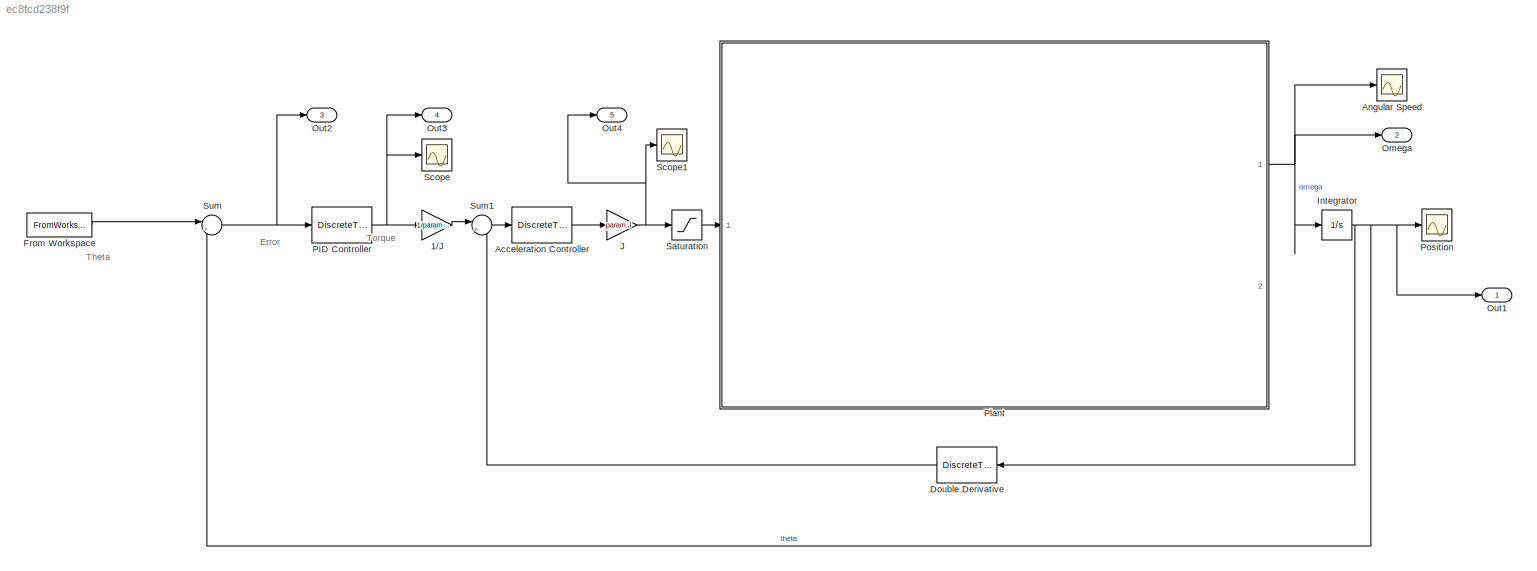
MODEL slx_ec8fcd238f9f
KIND model
CONFIG AbsTol = auto
CONFIG EnableMultiTasking = off
CONFIG FixedStep = auto
CONFIG MaxStep = auto
CONFIG MinStep = auto
CONFIG RelTol = 1e-3
CONFIG SampleTimeConstraint = Unconstrained
CONFIG SolverName = VariableStepAuto
CONFIG StartTime = 0.0
CONFIG StopTime = 10
BLOCK [Gain] 1//J
  Gain = 1/param.J
BLOCK [DiscreteTransferFcn] Acceleration Controller
  Denominator = a_ac
  InputPortMap = u0
  Numerator = b_ac
  Ports = [1, 1]
  SampleTime = T
BLOCK [Scope] Angular Speed
  Floating = off
  NumInputPorts = 1
  Ports = [1]
  ScopeSpecificationString = Simulink.scopes.TimeScopeBlockCfg('CurrentConfiguration', extmgr.ConfigurationSet(extmgr.Configuration('Core','General UI',true),extmgr.Configuration('Core','Source UI',true),extmgr.Configuration('Sources','WiredSimulink',true,'DataLoggingVariableName','ScopeData1'),extmgr.Configuration('Visuals','Time Domain',true,'SerializedDisplays',{struct('MinYLimReal','-16.66629','MaxYLimReal','85.93646','YL...<+1449ch>
BLOCK [DiscreteTransferFcn] Double Derivative
  Denominator = a_dd
  InputPortMap = u0
  Numerator = b_dd
  Ports = [1, 1]
  SampleTime = T
BLOCK [FromWorkspace] From Workspace
  VariableName = sim_source_on
BLOCK [Integrator] Integrator
  Ports = [1, 1]
BLOCK [Gain] J
  Gain = param.J
BLOCK [Outport] Omega
  Port = 2
  SignalName = omega
BLOCK [Outport] Out1
  SignalName = theta
BLOCK [Outport] Out2
  Port = 3
  SignalName = error
BLOCK [Outport] Out3
  Port = 4
  SignalName = PID Torque
BLOCK [Outport] Out4
  Port = 5
  SignalName = Accel Torque
BLOCK [DiscreteTransferFcn] PID Controller
  Denominator = a_pid
  InputPortMap = u0
  Numerator = b_pid
  Ports = [1, 1]
  SampleTime = T
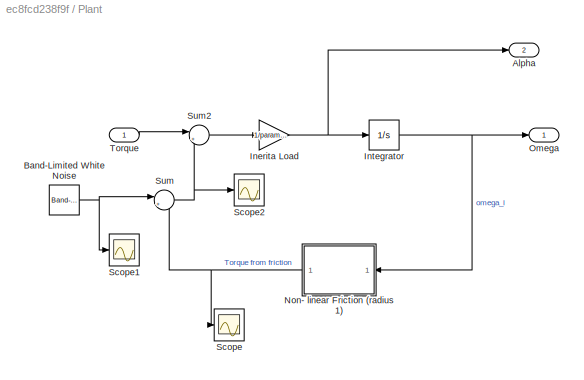
BLOCK [SubSystem] Plant
  Ports = [1, 2]
  RequestExecContextInheritance = off
BLOCK [Outport] Plant/Alpha
  Port = 2
BLOCK [Reference] Plant/Band-Limited White Noise  REF=simulink/Sources/Band-Limited
White Noise
  Ports = [0, 1]
  SourceBlock = simulink/Sources/Band-Limited\nWhite Noise
  SourceProductBaseCode = SL
  SourceType = Band-Limited White Noise.
BLOCK [Gain] Plant/Inerita Load
  Gain = 1/param.J
BLOCK [Integrator] Plant/Integrator
  Ports = [1, 1]
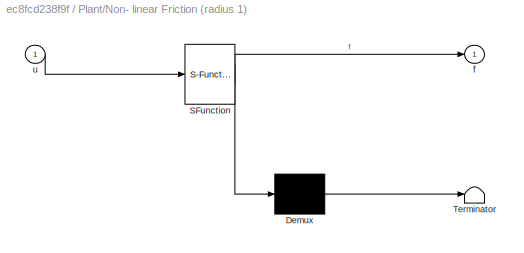
BLOCK [SubSystem] Plant/Non- linear Friction (radius 1)
  ErrorFcn = Stateflow.Translate.translate
  PermitHierarchicalResolution = ExplicitOnly
  Ports = [1, 1]
  RequestExecContextInheritance = off
  SFBlockType = MATLAB Function
  TreatAsAtomicUnit = on
BLOCK [Demux] Plant/Non- linear Friction (radius 1)/ Demux 
  Outputs = 1
  Ports = [1, 1]
BLOCK [S-Function] Plant/Non- linear Friction (radius 1)/ SFunction 
  EnableBusSupport = on
  FunctionName = sf_sfun
  Parameters = param
  PortCounts = [1 2]
  Ports = [1, 2]
  SFcnIsStateOwnerBlock = off
  SFunctionDeploymentMode = off
  Tag = Stateflow S-Function 2
BLOCK [Terminator] Plant/Non- linear Friction (radius 1)/ Terminator 
BLOCK [Outport] Plant/Non- linear Friction (radius 1)/f
BLOCK [Inport] Plant/Non- linear Friction (radius 1)/u
BLOCK [Outport] Plant/Omega
BLOCK [Scope] Plant/Scope
  Floating = off
  NumInputPorts = 1
  Ports = [1]
  ScopeSpecificationString = Simulink.scopes.TimeScopeBlockCfg('CurrentConfiguration', extmgr.ConfigurationSet(extmgr.Configuration('Core','General UI',true),extmgr.Configuration('Core','Source UI',true),extmgr.Configuration('Sources','WiredSimulink',true,'DataLoggingVariableName','ScopeData1'),extmgr.Configuration('Visuals','Time Domain',true,'SerializedDisplays',{struct('MinYLimReal','-0.15171','MaxYLimReal','0.15171','YLab...<+1379ch>
BLOCK [Scope] Plant/Scope1
  Floating = off
  NumInputPorts = 1
  Ports = [1]
  ScopeSpecificationString = Simulink.scopes.TimeScopeBlockCfg('CurrentConfiguration', extmgr.ConfigurationSet(extmgr.Configuration('Core','General UI',true),extmgr.Configuration('Core','Source UI',true),extmgr.Configuration('Sources','WiredSimulink',true,'DataLoggingVariableName','ScopeData1'),extmgr.Configuration('Visuals','Time Domain',true,'SerializedDisplays',{struct('MinYLimReal','-0.02423','MaxYLimReal','0.02143','YLab...<+1383ch>
BLOCK [Scope] Plant/Scope2
  Floating = off
  NumInputPorts = 1
  Ports = [1]
  ScopeSpecificationString = Simulink.scopes.TimeScopeBlockCfg('CurrentConfiguration', extmgr.ConfigurationSet(extmgr.Configuration('Core','General UI',true),extmgr.Configuration('Core','Source UI',true),extmgr.Configuration('Sources','WiredSimulink',true,'DataLoggingVariableName','ScopeData2'),extmgr.Configuration('Visuals','Time Domain',true,'SerializedDisplays',{struct('MinYLimReal','-0.02423','MaxYLimReal','0.02143','YLab...<+1362ch>
BLOCK [Sum] Plant/Sum
  Inputs = |++
  Ports = [2, 1]
BLOCK [Sum] Plant/Sum2
  Inputs = |+-
  Ports = [2, 1]
BLOCK [Inport] Plant/Torque
BLOCK [Scope] Position
  Floating = off
  NumInputPorts = 1
  Ports = [1]
  ScopeSpecificationString = Simulink.scopes.TimeScopeBlockCfg('CurrentConfiguration', extmgr.ConfigurationSet(extmgr.Configuration('Core','General UI',true),extmgr.Configuration('Core','Source UI',true),extmgr.Configuration('Sources','WiredSimulink',true),extmgr.Configuration('Visuals','Time Domain',true,'SerializedDisplays',{struct('MinYLimReal','-0.22343','MaxYLimReal','1.30207','YLabelReal','','MinYLimMag','0.00000','MaxY...<+1404ch>
BLOCK [Saturate] Saturation
BLOCK [Scope] Scope
  Floating = off
  NumInputPorts = 1
  Ports = [1]
  ScopeSpecificationString = Simulink.scopes.TimeScopeBlockCfg('CurrentConfiguration', extmgr.ConfigurationSet(extmgr.Configuration('Core','General UI',true),extmgr.Configuration('Core','Source UI',true),extmgr.Configuration('Sources','WiredSimulink',true,'DataLoggingVariableName','ScopeData1'),extmgr.Configuration('Visuals','Time Domain',true,'SerializedDisplays',{struct('MinYLimReal','-0.17836','MaxYLimReal','0.17673','YLab...<+1373ch>
BLOCK [Scope] Scope1
  Floating = off
  NumInputPorts = 1
  Ports = [1]
  ScopeSpecificationString = Simulink.scopes.TimeScopeBlockCfg('CurrentConfiguration', extmgr.ConfigurationSet(extmgr.Configuration('Core','General UI',true),extmgr.Configuration('Core','Source UI',true),extmgr.Configuration('Sources','WiredSimulink',true,'DataLoggingVariableName','ScopeData2'),extmgr.Configuration('Visuals','Time Domain',true,'SerializedDisplays',{struct('MinYLimReal','-69.36128','MaxYLimReal','71.34254','YL...<+1469ch>
BLOCK [Sum] Sum
  Inputs = |+-
  Ports = [2, 1]
BLOCK [Sum] Sum1
  Inputs = |+-
  Ports = [2, 1]
ANNOTATION (root): Error
ANNOTATION (root): Theta
ANNOTATION (root): Torque
LINE 1//J:1 -> Sum1:1
LINE Acceleration Controller:1 -> J:1
LINE Double Derivative:1 -> Sum1:2
LINE From Workspace:1 -> Sum:1
NET Integrator:1 -> Double Derivative:1, Out1:1, Position:1, Sum:2
NET J:1 -> Out4:1, Saturation:1, Scope1:1
NET PID Controller:1 -> 1//J:1, Out3:1, Scope:1
NET Plant/Band-Limited White Noise:1 -> Plant/Scope1:1, Plant/Sum:1
NET Plant/Inerita Load:1 -> Plant/Alpha:1, Plant/Integrator:1
NET Plant/Integrator:1 -> Plant/Non- linear Friction (radius 1):1, Plant/Omega:1
NET Plant/Non- linear Friction (radius 1):1 -> Plant/Scope:1, Plant/Sum:2
LINE Plant/Sum2:1 -> Plant/Inerita Load:1
NET Plant/Sum:1 -> Plant/Scope2:1, Plant/Sum2:2
LINE Plant/Torque:1 -> Plant/Sum2:1
NET Plant:1 -> Angular Speed:1, Integrator:1, Omega:1
LINE Saturation:1 -> Plant:1
LINE Sum1:1 -> Acceleration Controller:1
NET Sum:1 -> Out2:1, PID Controller:1
note: NET lines group one-source signal fan-out (src -> all destinations, sorted); 1:1 wires keep LINE
CHART Plant/Non- linear Friction (radius 1) states=1 transitions=1
  STATE_LABEL 'eML_blk_kernel()'
  STATE_LABEL 'SCRIPT:\n\nfunction f = friction_m(u, param)\n\n%FRICTION_M Nonlinear friction model with Stribeck, Coulomb and viscous\n\n% dissipation effects.\n\n% Output equation.\n\nf = param.g1*(tanh(param.g2*u)-tanh(param.g3*u)) ... % Stribeck effect.\n+ param.g4*tanh(param.g5*u) ... % Coulomb effect.\n+ param.g6*u; % Viscous dissipation term.\n\nend\n'
CHART  states=0 transitions=0
